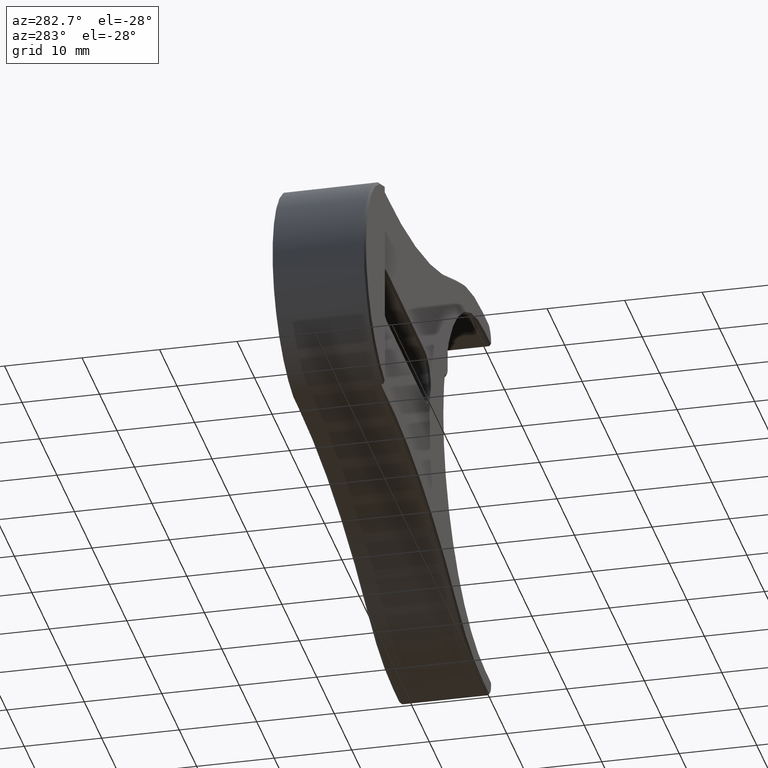
[diagram: clean part render]
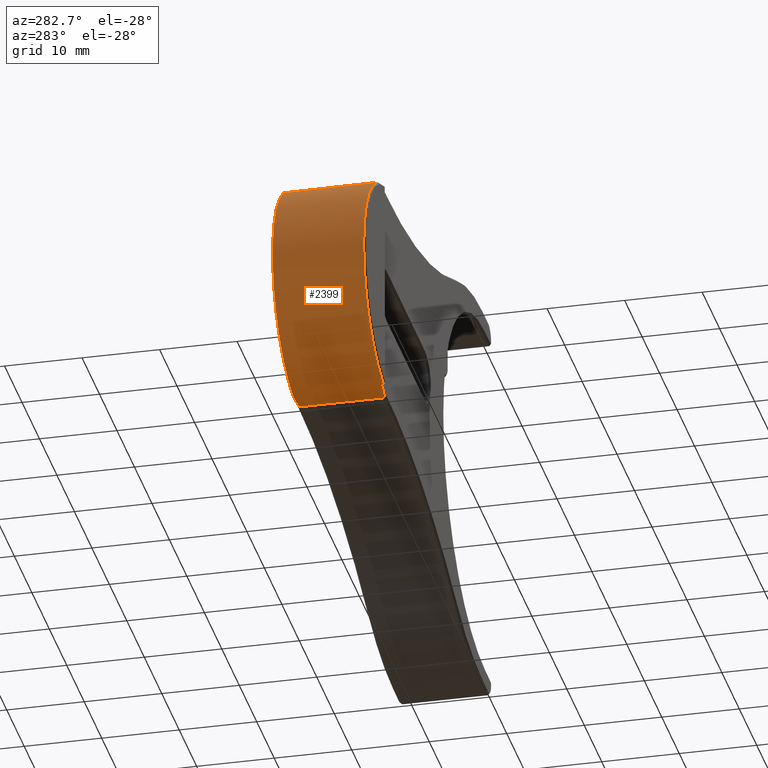
[diagram: same view with one face highlighted and labeled with its STEP entity id]
A machine part, auxiliary view. The second image highlights one B-rep face of the part: STEP entity #2399.
In plain terms, the highlighted cylindrical surface (partial cylindrical patch) has radius 14.5 mm, axis along (-0, 1, -0).
Its self-contained STEP definition (entity closure, byte-faithful):
#26 = CARTESIAN_POINT ( 'NONE',  ( -56.64315519673124300, 11.75000000000002842, 14.49593889718622819 ) ) ;
#30 = CARTESIAN_POINT ( 'NONE',  ( -56.29999999999999005, 0.5000000000000000000, 6.894761479199597834E-15 ) ) ;
#34 = CIRCLE ( 'NONE', #1334, 14.50000000000000355 ) ;
#67 = CARTESIAN_POINT ( 'NONE',  ( -58.12636869941346163, 11.85355680884433660, -14.40323325915171537 ) ) ;
#94 = LINE ( 'NONE', #565, #831 ) ;
#105 = VECTOR ( 'NONE', #507, 1000.000000000000000 ) ;
#143 = EDGE_CURVE ( 'NONE', #2893, #1114, #2961, .T. ) ;
#176 = VERTEX_POINT ( 'NONE', #1407 ) ;
#205 = CARTESIAN_POINT ( 'NONE',  ( -56.29999999999999005, 0.000000000000000000, 6.894761479199597834E-15 ) ) ;
#207 = CARTESIAN_POINT ( 'NONE',  ( -56.29999999999999005, 0.2500000000000383582, 6.894761479199597834E-15 ) ) ;
#243 = AXIS2_PLACEMENT_3D ( 'NONE', #658, #1661, #444 ) ;
#270 = CARTESIAN_POINT ( 'NONE',  ( -58.84893540990899652, 12.00000000000000000, -14.27420499629005235 ) ) ;
#323 = EDGE_CURVE ( 'NONE', #1067, #3077, #34, .T. ) ;
#392 = EDGE_LOOP ( 'NONE', ( #1835, #1423, #412, #660, #1426, #2897, #2680, #3236, #2802, #3182, #1941, #2057 ) ) ;
#400 = CARTESIAN_POINT ( 'NONE',  ( -57.39137686467817900, 0.7311834919932042043, 14.47822661545794531 ) ) ;
#412 = ORIENTED_EDGE ( 'NONE', *, *, #1230, .T. ) ;
#432 = CIRCLE ( 'NONE', #3148, 14.50000000000000355 ) ;
#444 = DIRECTION ( 'NONE',  ( 0.000000000000000000, 0.000000000000000000, -1.000000000000000000 ) ) ;
#453 = VECTOR ( 'NONE', #3207, 1000.000000000000000 ) ;
#473 = EDGE_CURVE ( 'NONE', #1533, #1067, #956, .T. ) ;
#475 = DIRECTION ( 'NONE',  ( -0.000000000000000000, 1.000000000000000000, -0.000000000000000000 ) ) ;
#507 = DIRECTION ( 'NONE',  ( -0.000000000000000000, 1.000000000000000000, -0.000000000000000000 ) ) ;
#510 = CARTESIAN_POINT ( 'NONE',  ( -58.12636869941392348, 0.6464431911557041444, -14.40323325915173491 ) ) ;
#545 = CARTESIAN_POINT ( 'NONE',  ( -58.84893540990964311, 0.5000000000000000000, -14.27420499628993689 ) ) ;
#559 = DIRECTION ( 'NONE',  ( 9.570888143320311943E-16, 0.000000000000000000, -1.000000000000000000 ) ) ;
#565 = CARTESIAN_POINT ( 'NONE',  ( -56.64315519673120747, 0.000000000000000000, -14.49593889718621398 ) ) ;
#572 = CARTESIAN_POINT ( 'NONE',  ( -58.84893540990933047, 0.5000000000000000000, 14.27420499629000794 ) ) ;
#640 = EDGE_CURVE ( 'NONE', #3216, #2321, #932, .T. ) ;
#658 = CARTESIAN_POINT ( 'NONE',  ( -56.29999999999999005, 0.5000000000000000000, 6.894761479199597834E-15 ) ) ;
#660 = ORIENTED_EDGE ( 'NONE', *, *, #143, .T. ) ;
#711 = B_SPLINE_CURVE_WITH_KNOTS ( 'NONE', 3,
 ( #2637, #67, #1144, #1124 ),
 .UNSPECIFIED., .F., .F.,
 ( 4, 4 ),
 ( 6.938893903907228378E-18, 0.002230948738015560949 ),
 .UNSPECIFIED. ) ;
#775 = DIRECTION ( 'NONE',  ( -0.000000000000000000, 1.000000000000000000, -0.000000000000000000 ) ) ;
#831 = VECTOR ( 'NONE', #2055, 1000.000000000000000 ) ;
#932 = B_SPLINE_CURVE_WITH_KNOTS ( 'NONE', 3,
 ( #26, #2839, #2806, #2315 ),
 .UNSPECIFIED., .F., .F.,
 ( 4, 4 ),
 ( 0.000000000000000000, 0.002230948738015526255 ),
 .UNSPECIFIED. ) ;
#956 = LINE ( 'NONE', #984, #1535 ) ;
#968 = CARTESIAN_POINT ( 'NONE',  ( -59.60000000000000142, 0.000000000000000000, 14.11949007577824133 ) ) ;
#973 = DIRECTION ( 'NONE',  ( 0.000000000000000000, 0.000000000000000000, 1.000000000000000000 ) ) ;
#984 = CARTESIAN_POINT ( 'NONE',  ( -59.60000000000000142, 0.000000000000000000, -14.11949007577822712 ) ) ;
#1000 = CARTESIAN_POINT ( 'NONE',  ( -56.64315519673124300, 0.000000000000000000, 14.49593889718622819 ) ) ;
#1022 = CARTESIAN_POINT ( 'NONE',  ( -57.39137686467826427, 0.7311834919932083121, -14.47822661545791689 ) ) ;
#1040 = CARTESIAN_POINT ( 'NONE',  ( -56.29999999999999005, 12.00000000000000000, 6.894761479199597834E-15 ) ) ;
#1067 = VERTEX_POINT ( 'NONE', #2413 ) ;
#1076 = EDGE_CURVE ( 'NONE', #2980, #1375, #711, .T. ) ;
#1114 = VERTEX_POINT ( 'NONE', #572 ) ;
#1124 = CARTESIAN_POINT ( 'NONE',  ( -56.64315519673120747, 11.75000000000002842, -14.49593889718621398 ) ) ;
#1143 = CARTESIAN_POINT ( 'NONE',  ( -59.60000000000000142, 0.2500000000000383582, 14.11949007577824133 ) ) ;
#1144 = CARTESIAN_POINT ( 'NONE',  ( -57.39137686467803690, 11.76881650800680568, -14.47822661545793643 ) ) ;
#1158 = CARTESIAN_POINT ( 'NONE',  ( -58.12636869941371032, 0.6464431911556887123, 14.40323325915174202 ) ) ;
#1230 = EDGE_CURVE ( 'NONE', #3077, #2893, #2986, .T. ) ;
#1235 = DIRECTION ( 'NONE',  ( 0.000000000000000000, 1.000000000000000000, 0.000000000000000000 ) ) ;
#1303 = DIRECTION ( 'NONE',  ( -0.000000000000000000, -1.000000000000000000, -0.000000000000000000 ) ) ;
#1334 = AXIS2_PLACEMENT_3D ( 'NONE', #207, #1235, #2239 ) ;
#1375 = VERTEX_POINT ( 'NONE', #2527 ) ;
#1407 = CARTESIAN_POINT ( 'NONE',  ( -56.64315519673120747, 0.7500000000000002220, -14.49593889718621398 ) ) ;
#1423 = ORIENTED_EDGE ( 'NONE', *, *, #323, .T. ) ;
#1426 = ORIENTED_EDGE ( 'NONE', *, *, #1923, .T. ) ;
#1508 = DIRECTION ( 'NONE',  ( 0.000000000000000000, -1.000000000000000000, 0.000000000000000000 ) ) ;
#1532 = DIRECTION ( 'NONE',  ( 0.000000000000000000, 0.000000000000000000, 1.000000000000000000 ) ) ;
#1533 = VERTEX_POINT ( 'NONE', #1985 ) ;
#1535 = VECTOR ( 'NONE', #1508, 1000.000000000000000 ) ;
#1661 = DIRECTION ( 'NONE',  ( -0.000000000000000000, 1.000000000000000000, -0.000000000000000000 ) ) ;
#1684 = CARTESIAN_POINT ( 'NONE',  ( -58.84893540990933047, 0.5000000000000000000, 14.27420499629000794 ) ) ;
#1767 = CARTESIAN_POINT ( 'NONE',  ( -59.60000000000000142, 0.5000000000000000000, 14.11949007577824133 ) ) ;
#1820 = B_SPLINE_CURVE_WITH_KNOTS ( 'NONE', 3,
 ( #1684, #1158, #400, #3235 ),
 .UNSPECIFIED., .F., .F.,
 ( 4, 4 ),
 ( 6.952433221959954168E-18, 0.002230948738015873199 ),
 .UNSPECIFIED. ) ;
#1835 = ORIENTED_EDGE ( 'NONE', *, *, #473, .T. ) ;
#1923 = EDGE_CURVE ( 'NONE', #1114, #2191, #1820, .T. ) ;
#1941 = ORIENTED_EDGE ( 'NONE', *, *, #2502, .T. ) ;
#1943 = VERTEX_POINT ( 'NONE', #2426 ) ;
#1947 = CARTESIAN_POINT ( 'NONE',  ( -56.64315519673124300, 11.75000000000002842, 14.49593889718622819 ) ) ;
#1985 = CARTESIAN_POINT ( 'NONE',  ( -59.60000000000000142, 0.5000000000000000000, -14.11949007577822712 ) ) ;
#2026 = AXIS2_PLACEMENT_3D ( 'NONE', #30, #775, #559 ) ;
#2055 = DIRECTION ( 'NONE',  ( -0.000000000000000000, 1.000000000000000000, -0.000000000000000000 ) ) ;
#2057 = ORIENTED_EDGE ( 'NONE', *, *, #2487, .T. ) ;
#2191 = VERTEX_POINT ( 'NONE', #3099 ) ;
#2205 = EDGE_CURVE ( 'NONE', #176, #1375, #94, .T. ) ;
#2239 = DIRECTION ( 'NONE',  ( 0.000000000000000000, 0.000000000000000000, 1.000000000000000000 ) ) ;
#2252 = CARTESIAN_POINT ( 'NONE',  ( -58.84893540990898941, 12.00000000000000000, 14.27420499629007011 ) ) ;
#2315 = CARTESIAN_POINT ( 'NONE',  ( -58.84893540990898941, 12.00000000000000000, 14.27420499629007011 ) ) ;
#2321 = VERTEX_POINT ( 'NONE', #2252 ) ;
#2343 = AXIS2_PLACEMENT_3D ( 'NONE', #205, #475, #973 ) ;
#2399 = ADVANCED_FACE ( 'NONE', ( #2993 ), #2742, .T. ) ;
#2413 = CARTESIAN_POINT ( 'NONE',  ( -59.60000000000000142, 0.2500000000000383582, -14.11949007577822712 ) ) ;
#2426 = CARTESIAN_POINT ( 'NONE',  ( -58.84893540990964311, 0.5000000000000000000, -14.27420499628993689 ) ) ;
#2433 = EDGE_CURVE ( 'NONE', #2321, #2980, #432, .T. ) ;
#2487 = EDGE_CURVE ( 'NONE', #1943, #1533, #2559, .T. ) ;
#2502 = EDGE_CURVE ( 'NONE', #176, #1943, #2896, .T. ) ;
#2527 = CARTESIAN_POINT ( 'NONE',  ( -56.64315519673120747, 11.75000000000002842, -14.49593889718621398 ) ) ;
#2559 = CIRCLE ( 'NONE', #2026, 14.50000000000000355 ) ;
#2637 = CARTESIAN_POINT ( 'NONE',  ( -58.84893540990899652, 12.00000000000000000, -14.27420499629005235 ) ) ;
#2680 = ORIENTED_EDGE ( 'NONE', *, *, #640, .T. ) ;
#2742 = CYLINDRICAL_SURFACE ( 'NONE', #2343, 14.50000000000000355 ) ;
#2790 = LINE ( 'NONE', #1000, #105 ) ;
#2802 = ORIENTED_EDGE ( 'NONE', *, *, #1076, .T. ) ;
#2806 = CARTESIAN_POINT ( 'NONE',  ( -58.12636869941346873, 11.85355680884429042, 14.40323325915179531 ) ) ;
#2839 = CARTESIAN_POINT ( 'NONE',  ( -57.39137686467805821, 11.76881650800681633, 14.47822661545794887 ) ) ;
#2893 = VERTEX_POINT ( 'NONE', #1767 ) ;
#2896 = B_SPLINE_CURVE_WITH_KNOTS ( 'NONE', 3,
 ( #3042, #1022, #510, #545 ),
 .UNSPECIFIED., .F., .F.,
 ( 4, 4 ),
 ( 1.084202172485504434E-19, 0.002230948738016227950 ),
 .UNSPECIFIED. ) ;
#2897 = ORIENTED_EDGE ( 'NONE', *, *, #2944, .T. ) ;
#2944 = EDGE_CURVE ( 'NONE', #2191, #3216, #2790, .T. ) ;
#2961 = CIRCLE ( 'NONE', #243, 14.50000000000000355 ) ;
#2980 = VERTEX_POINT ( 'NONE', #270 ) ;
#2986 = LINE ( 'NONE', #968, #453 ) ;
#2993 = FACE_OUTER_BOUND ( 'NONE', #392, .T. ) ;
#3042 = CARTESIAN_POINT ( 'NONE',  ( -56.64315519673120747, 0.7500000000000002220, -14.49593889718621398 ) ) ;
#3077 = VERTEX_POINT ( 'NONE', #1143 ) ;
#3099 = CARTESIAN_POINT ( 'NONE',  ( -56.64315519673124300, 0.7500000000000002220, 14.49593889718622819 ) ) ;
#3148 = AXIS2_PLACEMENT_3D ( 'NONE', #1040, #1303, #1532 ) ;
#3182 = ORIENTED_EDGE ( 'NONE', *, *, #2205, .F. ) ;
#3207 = DIRECTION ( 'NONE',  ( -0.000000000000000000, 1.000000000000000000, -0.000000000000000000 ) ) ;
#3216 = VERTEX_POINT ( 'NONE', #1947 ) ;
#3235 = CARTESIAN_POINT ( 'NONE',  ( -56.64315519673124300, 0.7500000000000002220, 14.49593889718622819 ) ) ;
#3236 = ORIENTED_EDGE ( 'NONE', *, *, #2433, .T. ) ;